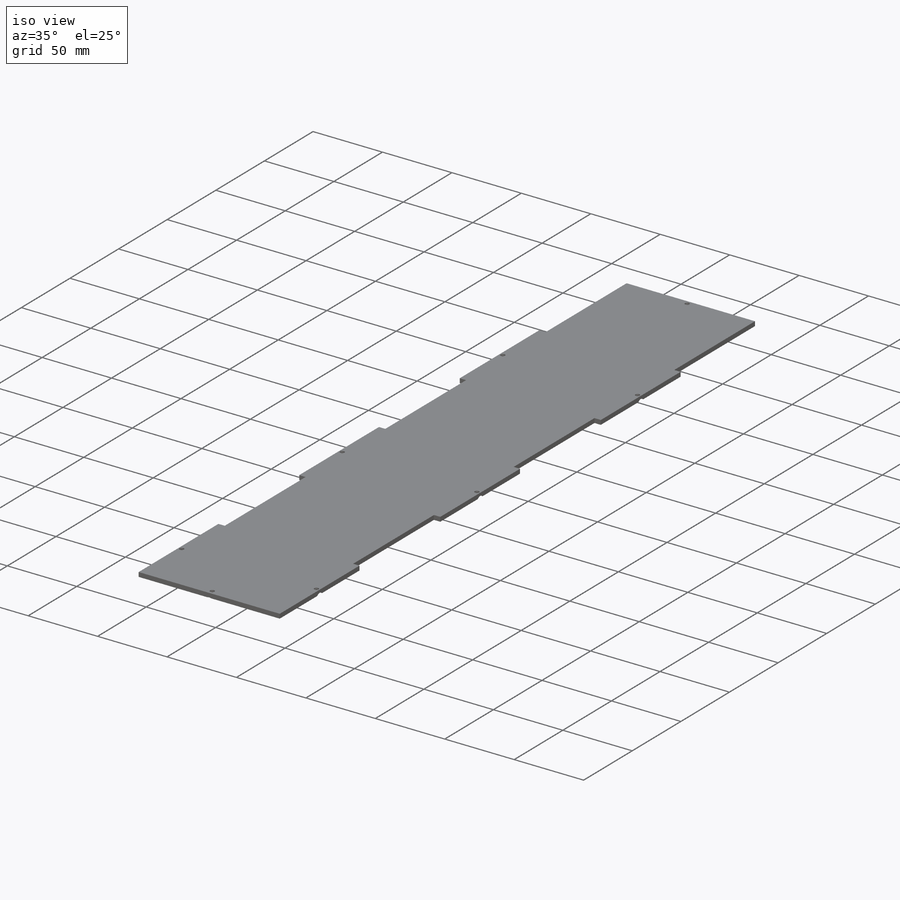
[diagram: iso view]
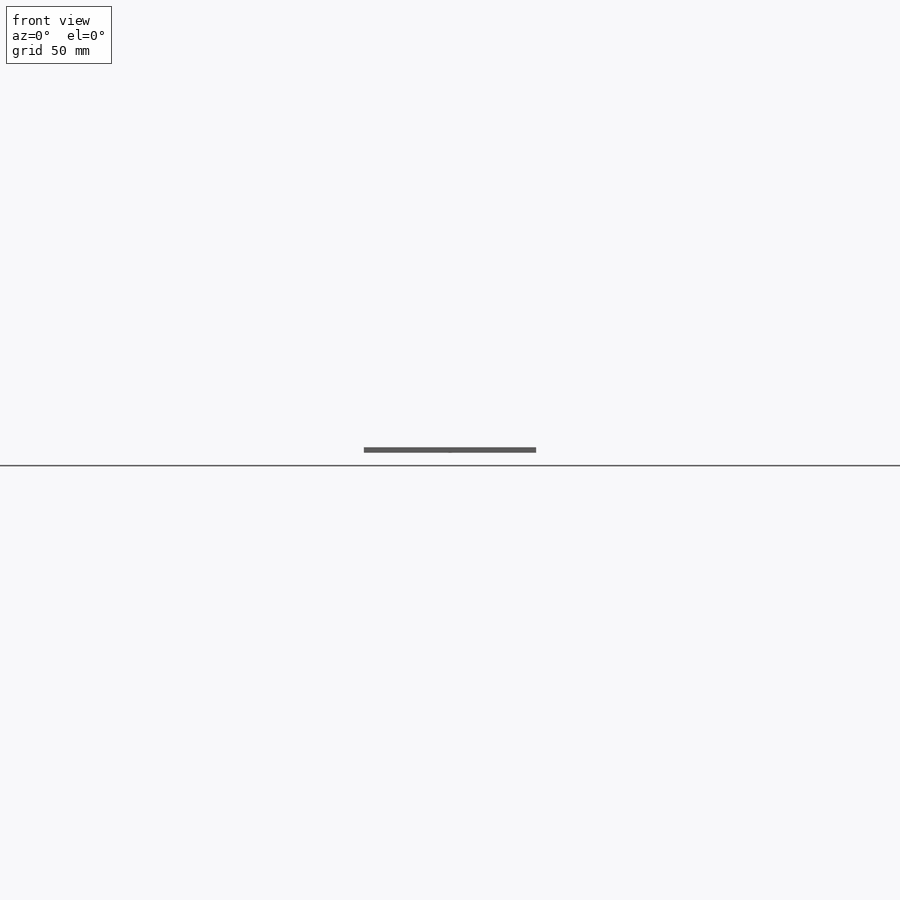
[diagram: front view]
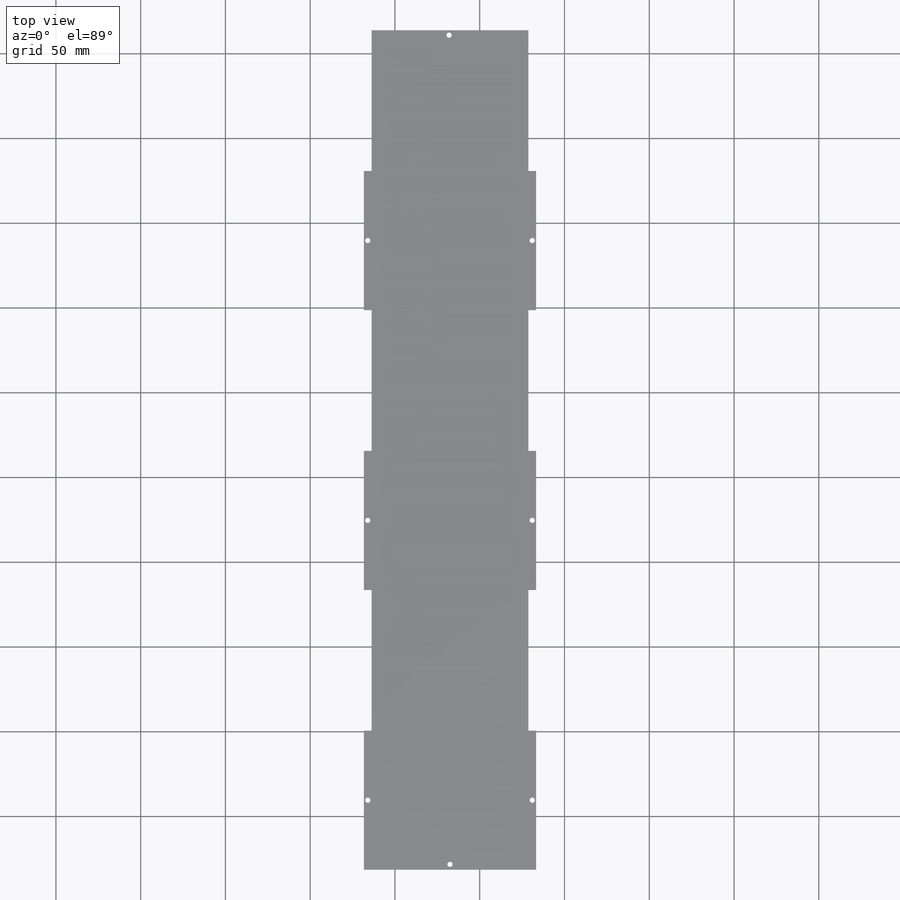
[diagram: top view]
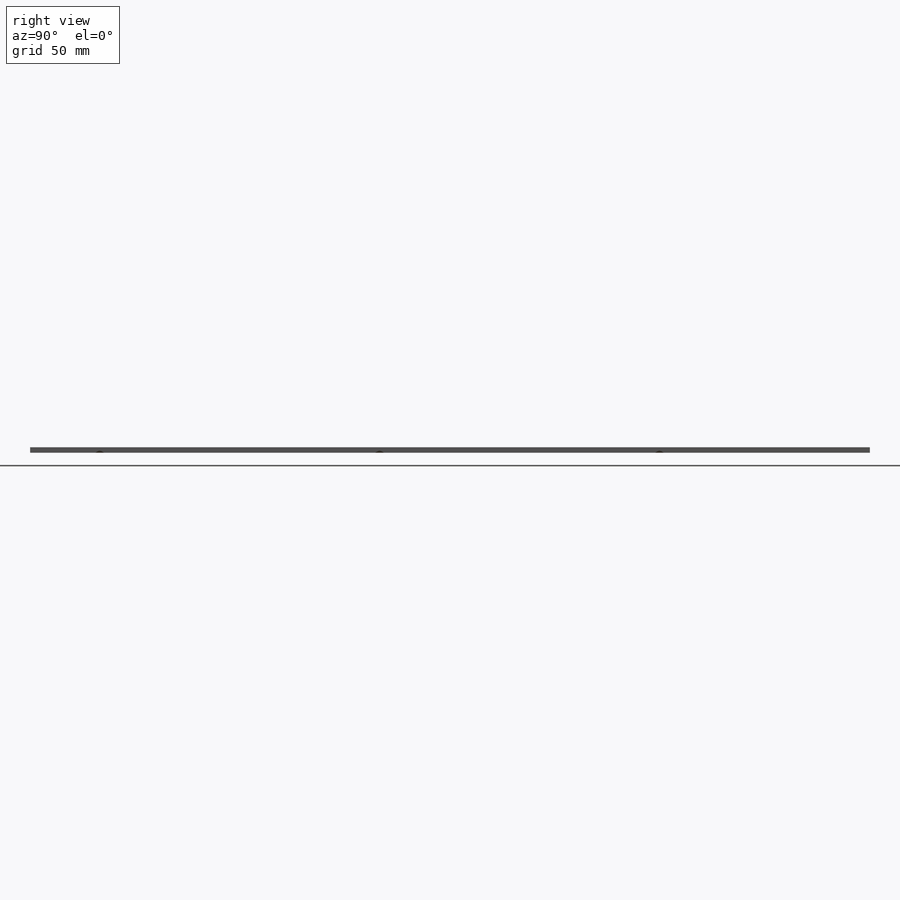
[diagram: right view]
SOLIDWORKS PART (.sldprt)
format: sldprt  version: not decoded by parser v0  size: 218,112 bytes
history: native  units: mm
features: sketch x2, material x1, extrude x1, cut_extrude x1, chamfer x1 (+11 scaffold rows collapsed)
feature tree (17):
  scaffold x11  (default folders/planes/origin — collapsed)
  material  "Material <not specified>"
  sketch  "Sketch1"  dims[c1.D8=3.048mm c1.D12=3.048mm c1.D1=45.6819mm c1.D2=4.572mm c1.D3=4.572mm c1.D4=4.572mm c1.D5=82.042mm c1.D6=82.042mm c1.D7=82.042mm c2.D8=488.95mm c2.D9=6.35mm c2.D10=2.286mm c2.D11=41.021mm c2.D13=3.175mm c2.D14=101.6mm c3.D8=50.8mm]
  extrude  "Boss-Extrude1"  Depth=3.175mm
  sketch  "Sketch2"  dims[c1.D1=3.048mm c1.D2=~48.593228mm c1.D3=~42.770572mm c2.D2=45.6819mm c2.D3=2.921mm]
  cut_extrude  "Cut-Extrude1"  Depth=12.7mm
  chamfer  "Chamfer1"  Distance=1.905mm Angle=45deg
decode coverage: 5 of 5 modeling features carry decoded parameters
note: ~ marks probable driven/reference dimensions
note: suppression state not decoded; provenance and decode notes live in map.json
